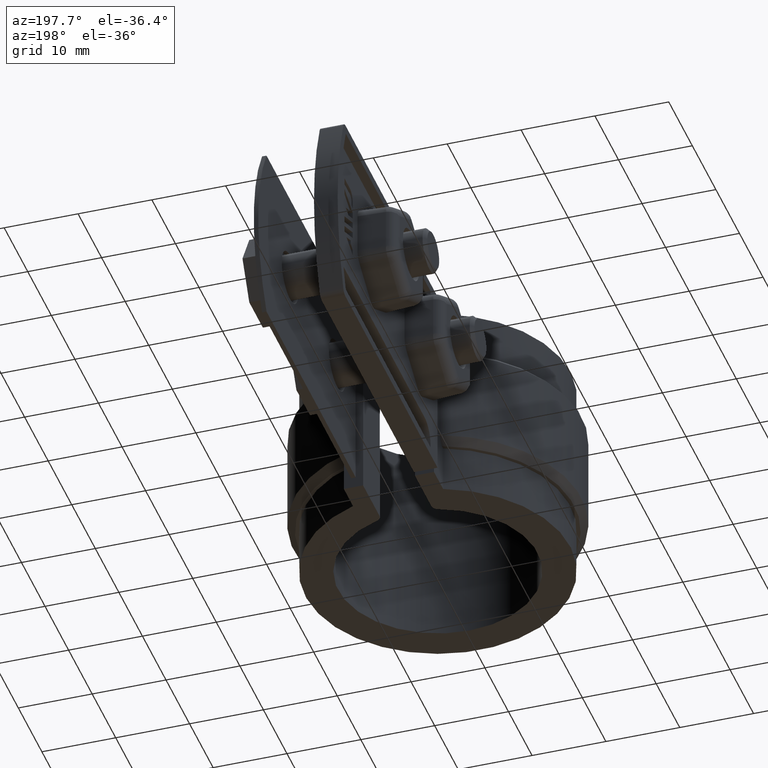
[diagram: clean part render]
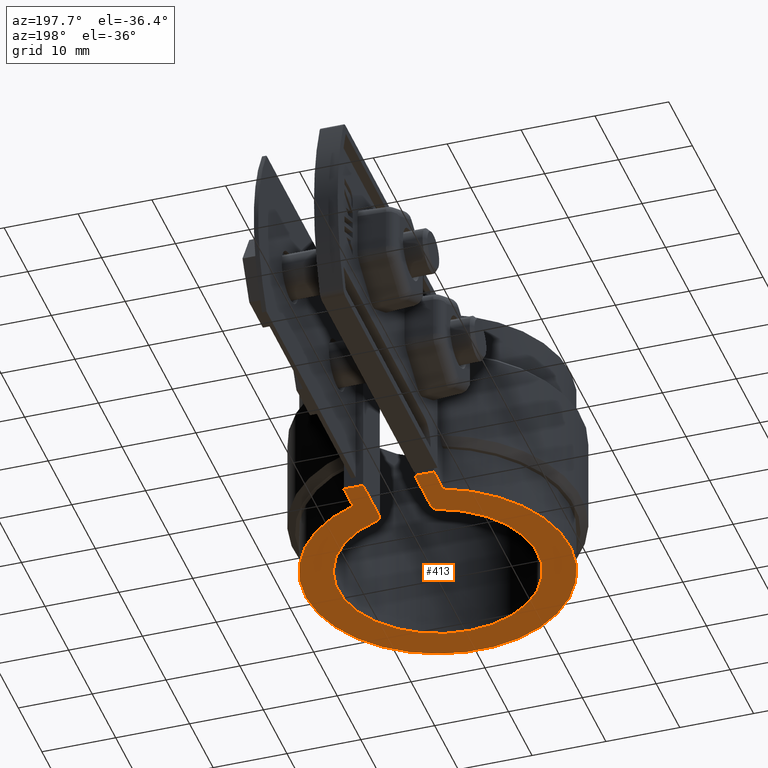
[diagram: same view with one face highlighted and labeled with its STEP entity id]
A machine part, auxiliary view. The second image highlights one B-rep face of the part: STEP entity #413.
In plain terms, the highlighted planar face has unit normal (0, 0, -1).
Its self-contained STEP definition (entity closure, byte-faithful):
#413 = ADVANCED_FACE( '', ( #815 ), #816, .T. );
#815 = FACE_OUTER_BOUND( '', #1735, .T. );
#816 = PLANE( '', #1736 );
#1735 = EDGE_LOOP( '', ( #3546, #3547, #3548, #3549, #3550, #3551, #3552, #3553, #3554, #3555 ) );
#1736 = AXIS2_PLACEMENT_3D( '', #3556, #3557, #3558 );
#3546 = ORIENTED_EDGE( '', *, *, #6348, .F. );
#3547 = ORIENTED_EDGE( '', *, *, #6352, .T. );
#3548 = ORIENTED_EDGE( '', *, *, #6353, .T. );
#3549 = ORIENTED_EDGE( '', *, *, #6354, .T. );
#3550 = ORIENTED_EDGE( '', *, *, #6355, .T. );
#3551 = ORIENTED_EDGE( '', *, *, #6342, .T. );
#3552 = ORIENTED_EDGE( '', *, *, #6356, .F. );
#3553 = ORIENTED_EDGE( '', *, *, #6357, .T. );
#3554 = ORIENTED_EDGE( '', *, *, #6358, .T. );
#3555 = ORIENTED_EDGE( '', *, *, #6359, .T. );
#3556 = CARTESIAN_POINT( '', ( -6.50000000000000, 15.3831076184235, -26.5000000000000 ) );
#3557 = DIRECTION( '', ( 0.000000000000000, 0.000000000000000, -1.00000000000000 ) );
#3558 = DIRECTION( '', ( 0.000000000000000, -1.00000000000000, 0.000000000000000 ) );
#6342 = EDGE_CURVE( '', #7351, #7349, #7352, .F. );
#6348 = EDGE_CURVE( '', #7362, #7363, #7364, .T. );
#6352 = EDGE_CURVE( '', #7362, #7370, #7371, .F. );
#6353 = EDGE_CURVE( '', #7370, #7372, #7373, .F. );
#6354 = EDGE_CURVE( '', #7372, #7374, #7375, .T. );
#6355 = EDGE_CURVE( '', #7374, #7351, #7376, .F. );
#6356 = EDGE_CURVE( '', #7377, #7349, #7378, .T. );
#6357 = EDGE_CURVE( '', #7377, #7379, #7380, .T. );
#6358 = EDGE_CURVE( '', #7379, #7381, #7382, .F. );
#6359 = EDGE_CURVE( '', #7381, #7363, #7383, .T. );
#7349 = VERTEX_POINT( '', #9612 );
#7351 = VERTEX_POINT( '', #9615 );
#7352 = LINE( '', #9616, #9617 );
#7362 = VERTEX_POINT( '', #9632 );
#7363 = VERTEX_POINT( '', #9633 );
#7364 = LINE( '', #9634, #9635 );
#7370 = VERTEX_POINT( '', #9644 );
#7371 = LINE( '', #9645, #9646 );
#7372 = VERTEX_POINT( '', #9647 );
#7373 = LINE( '', #9648, #9649 );
#7374 = VERTEX_POINT( '', #9650 );
#7375 = CIRCLE( '', #9651, 17.9350000000000 );
#7376 = LINE( '', #9652, #9653 );
#7377 = VERTEX_POINT( '', #9654 );
#7378 = LINE( '', #9655, #9656 );
#7379 = VERTEX_POINT( '', #9657 );
#7380 = CIRCLE( '', #9658, 1.00000000000000 );
#7381 = VERTEX_POINT( '', #9659 );
#7382 = CIRCLE( '', #9660, 13.5000000000000 );
#7383 = CIRCLE( '', #9661, 1.00000000000000 );
#9612 = CARTESIAN_POINT( '', ( -3.49999999999999, 20.7500000000000, -26.5000000000000 ) );
#9615 = CARTESIAN_POINT( '', ( -6.09999999999997, 20.7500000000000, -26.5000000000000 ) );
#9616 = CARTESIAN_POINT( '', ( -6.50000000000000, 20.7500000000000, -26.5000000000000 ) );
#9617 = VECTOR( '', #12342, 1000.00000000000 );
#9632 = CARTESIAN_POINT( '', ( 3.50000000000000, 20.7500000000000, -26.5000000000000 ) );
#9633 = CARTESIAN_POINT( '', ( 3.50000000000000, 13.7840487520902, -26.5000000000000 ) );
#9634 = CARTESIAN_POINT( '', ( 3.50000000000000, 20.7500000000000, -26.5000000000000 ) );
#9635 = VECTOR( '', #12348, 1000.00000000000 );
#9644 = CARTESIAN_POINT( '', ( 6.10000000000003, 20.7500000000000, -26.5000000000000 ) );
#9645 = CARTESIAN_POINT( '', ( -6.50000000000000, 20.7500000000000, -26.5000000000000 ) );
#9646 = VECTOR( '', #12352, 1000.00000000000 );
#9647 = CARTESIAN_POINT( '', ( 6.10000000000003, 16.8657708095420, -26.5000000000000 ) );
#9648 = CARTESIAN_POINT( '', ( 6.10000000000003, 15.3831076184235, -26.5000000000000 ) );
#9649 = VECTOR( '', #12353, 1000.00000000000 );
#9650 = CARTESIAN_POINT( '', ( -6.09999999999997, 16.8657708095420, -26.5000000000000 ) );
#9651 = AXIS2_PLACEMENT_3D( '', #12354, #12355, #12356 );
#9652 = CARTESIAN_POINT( '', ( -6.09999999999997, 15.3831076184235, -26.5000000000000 ) );
#9653 = VECTOR( '', #12357, 1000.00000000000 );
#9654 = CARTESIAN_POINT( '', ( -3.49999999999999, 13.7840487520902, -26.5000000000000 ) );
#9655 = CARTESIAN_POINT( '', ( -3.49999999999999, 13.0332277276199, -26.5000000000000 ) );
#9656 = VECTOR( '', #12358, 1000.00000000000 );
#9657 = CARTESIAN_POINT( '', ( -4.18965517241378, 12.8334247002219, -26.5000000000000 ) );
#9658 = AXIS2_PLACEMENT_3D( '', #12359, #12360, #12361 );
#9659 = CARTESIAN_POINT( '', ( 4.18965517241380, 12.8334247002219, -26.5000000000000 ) );
#9660 = AXIS2_PLACEMENT_3D( '', #12362, #12363, #12364 );
#9661 = AXIS2_PLACEMENT_3D( '', #12365, #12366, #12367 );
#12342 = DIRECTION( '', ( -1.00000000000000, 0.000000000000000, 0.000000000000000 ) );
#12348 = DIRECTION( '', ( -6.07153216591882E-017, -1.00000000000000, 0.000000000000000 ) );
#12352 = DIRECTION( '', ( -1.00000000000000, 0.000000000000000, 0.000000000000000 ) );
#12353 = DIRECTION( '', ( 6.07153216591882E-017, 1.00000000000000, 0.000000000000000 ) );
#12354 = CARTESIAN_POINT( '', ( 0.000000000000000, 0.000000000000000, -26.5000000000000 ) );
#12355 = DIRECTION( '', ( 0.000000000000000, 0.000000000000000, -1.00000000000000 ) );
#12356 = DIRECTION( '', ( -1.00000000000000, 0.000000000000000, 0.000000000000000 ) );
#12357 = DIRECTION( '', ( -6.07153216591882E-017, -1.00000000000000, 0.000000000000000 ) );
#12358 = DIRECTION( '', ( 6.07153216591882E-017, 1.00000000000000, 0.000000000000000 ) );
#12359 = CARTESIAN_POINT( '', ( -4.49999999999999, 13.7840487520902, -26.5000000000000 ) );
#12360 = DIRECTION( '', ( 0.000000000000000, 0.000000000000000, -1.00000000000000 ) );
#12361 = DIRECTION( '', ( -1.00000000000000, 0.000000000000000, 0.000000000000000 ) );
#12362 = CARTESIAN_POINT( '', ( 0.000000000000000, 0.000000000000000, -26.5000000000000 ) );
#12363 = DIRECTION( '', ( 0.000000000000000, 0.000000000000000, -1.00000000000000 ) );
#12364 = DIRECTION( '', ( -1.00000000000000, 0.000000000000000, 0.000000000000000 ) );
#12365 = CARTESIAN_POINT( '', ( 4.50000000000000, 13.7840487520902, -26.5000000000000 ) );
#12366 = DIRECTION( '', ( 0.000000000000000, 0.000000000000000, -1.00000000000000 ) );
#12367 = DIRECTION( '', ( -1.00000000000000, 0.000000000000000, 0.000000000000000 ) );